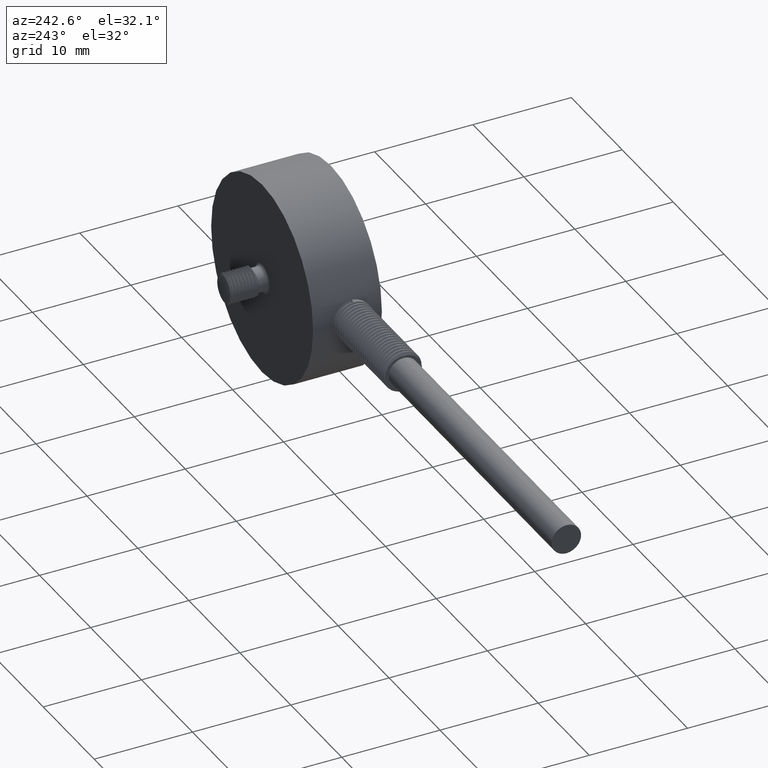
[diagram: clean part render]
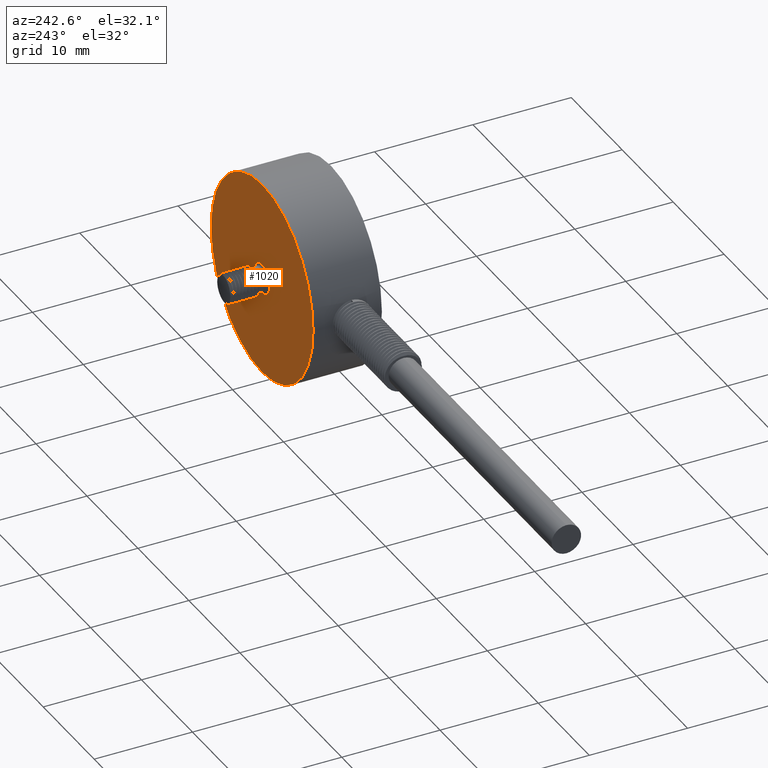
[diagram: same view with one face highlighted and labeled with its STEP entity id]
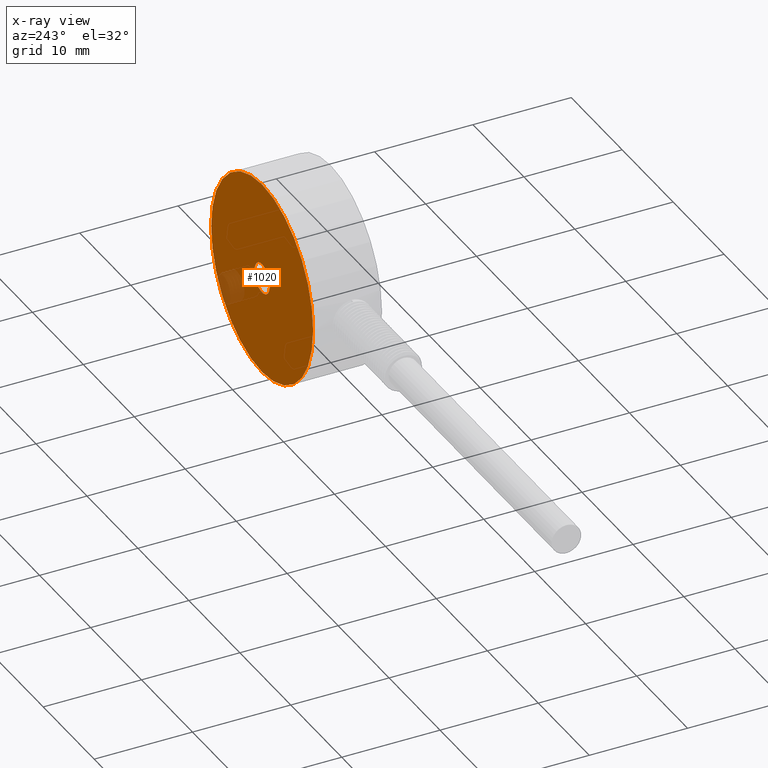
[diagram: x-ray of the same camera — body ghosted, the highlighted face saturated]
A machine part, auxiliary view. The second image highlights one B-rep face of the part: STEP entity #1020.
The next image is the same camera in x-ray: the body ghosted, the highlighted face saturated — about 5% of this face is hidden behind the body in this view.
In plain terms, the highlighted planar face has unit normal (0, -1, 0).
Its self-contained STEP definition (entity closure, byte-faithful):
#25=PLANE('',#1125);
#35=FACE_BOUND('',#152,.T.);
#89=FACE_OUTER_BOUND('',#151,.T.);
#151=EDGE_LOOP('',(#835,#836));
#152=EDGE_LOOP('',(#837,#838));
#184=CIRCLE('',#1105,1.5);
#185=CIRCLE('',#1106,1.5);
#192=CIRCLE('',#1116,10.);
#193=CIRCLE('',#1117,10.);
#450=VERTEX_POINT('',#3746);
#451=VERTEX_POINT('',#3748);
#458=VERTEX_POINT('',#3768);
#459=VERTEX_POINT('',#3769);
#591=EDGE_CURVE('',#450,#451,#184,.T.);
#592=EDGE_CURVE('',#451,#450,#185,.T.);
#601=EDGE_CURVE('',#458,#459,#192,.T.);
#602=EDGE_CURVE('',#459,#458,#193,.T.);
#835=ORIENTED_EDGE('',*,*,#601,.T.);
#836=ORIENTED_EDGE('',*,*,#602,.T.);
#837=ORIENTED_EDGE('',*,*,#592,.F.);
#838=ORIENTED_EDGE('',*,*,#591,.F.);
#1020=ADVANCED_FACE('',(#89,#35),#25,.F.);
#1105=AXIS2_PLACEMENT_3D('',#3749,#1295,#1296);
#1106=AXIS2_PLACEMENT_3D('',#3750,#1297,#1298);
#1116=AXIS2_PLACEMENT_3D('',#3770,#1319,#1320);
#1117=AXIS2_PLACEMENT_3D('',#3771,#1321,#1322);
#1125=AXIS2_PLACEMENT_3D('',#3951,#1338,#1339);
#1295=DIRECTION('center_axis',(0.,1.,0.));
#1296=DIRECTION('ref_axis',(0.,0.,1.));
#1297=DIRECTION('center_axis',(0.,1.,0.));
#1298=DIRECTION('ref_axis',(0.,0.,1.));
#1319=DIRECTION('center_axis',(0.,1.,0.));
#1320=DIRECTION('ref_axis',(0.,0.,1.));
#1321=DIRECTION('center_axis',(0.,1.,0.));
#1322=DIRECTION('ref_axis',(0.,0.,1.));
#1338=DIRECTION('center_axis',(0.,-1.,0.));
#1339=DIRECTION('ref_axis',(0.,0.,-1.));
#3746=CARTESIAN_POINT('',(-1.83697019872103E-16,7.,-1.5));
#3748=CARTESIAN_POINT('',(0.,7.,1.5));
#3749=CARTESIAN_POINT('Origin',(0.,7.,0.));
#3750=CARTESIAN_POINT('Origin',(0.,7.,0.));
#3768=CARTESIAN_POINT('',(0.,7.,10.));
#3769=CARTESIAN_POINT('',(-1.22464679914735E-15,7.,-10.));
#3770=CARTESIAN_POINT('Origin',(0.,7.,0.));
#3771=CARTESIAN_POINT('Origin',(0.,7.,0.));
#3951=CARTESIAN_POINT('Origin',(10.,7.,0.));